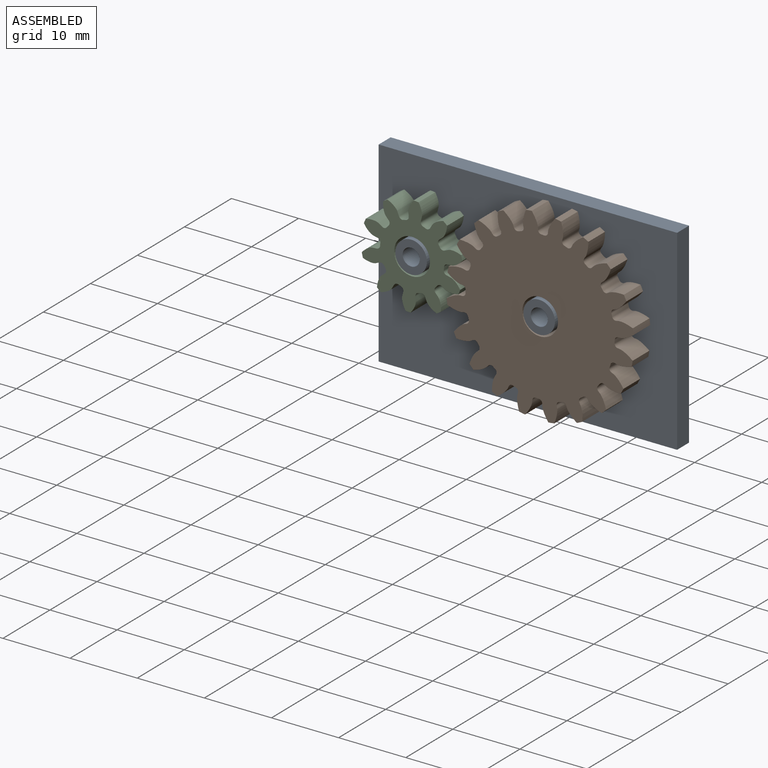
[diagram: assembled view]
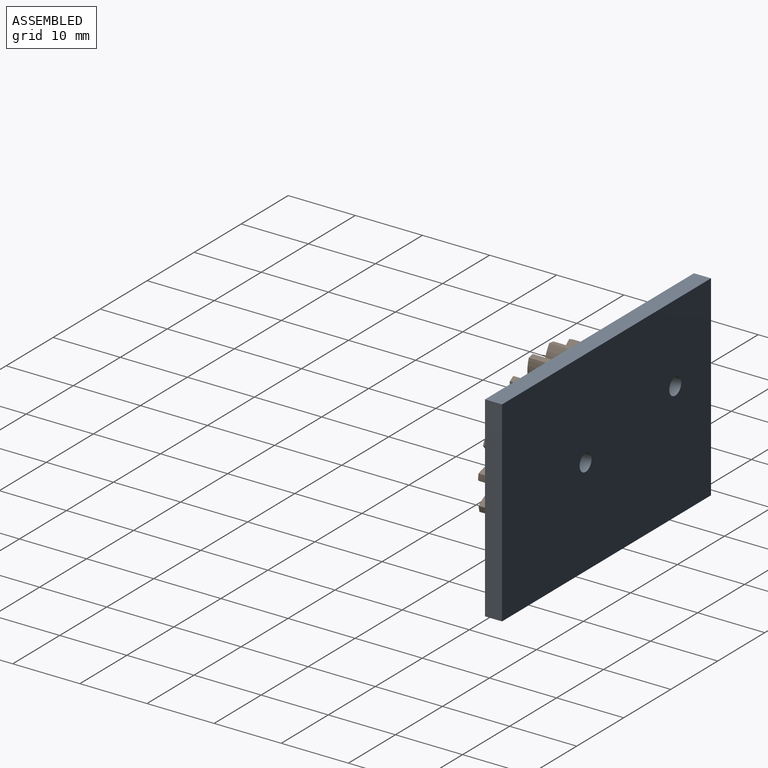
[diagram: assembled view, second angle]
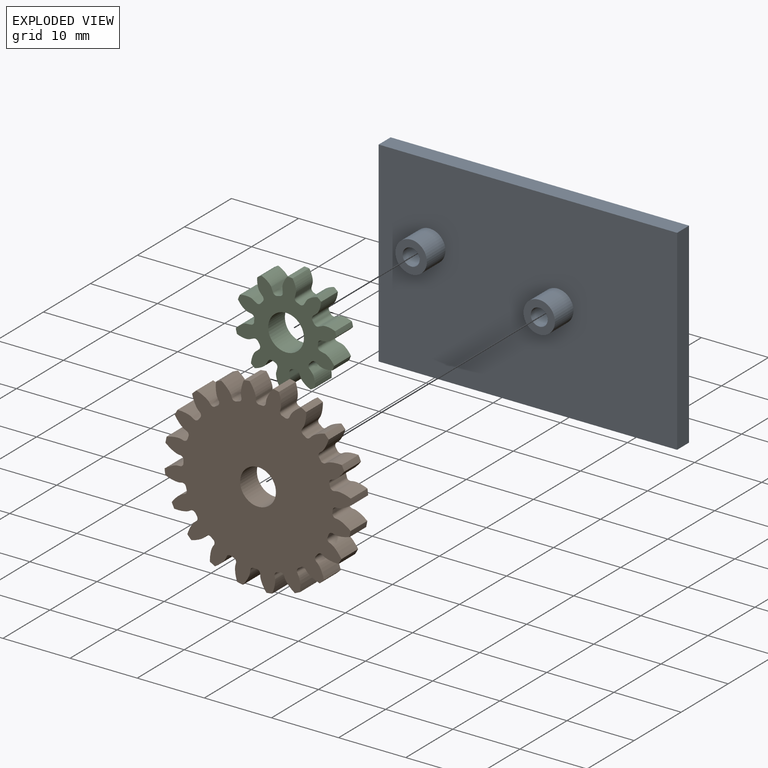
[diagram: exploded view]
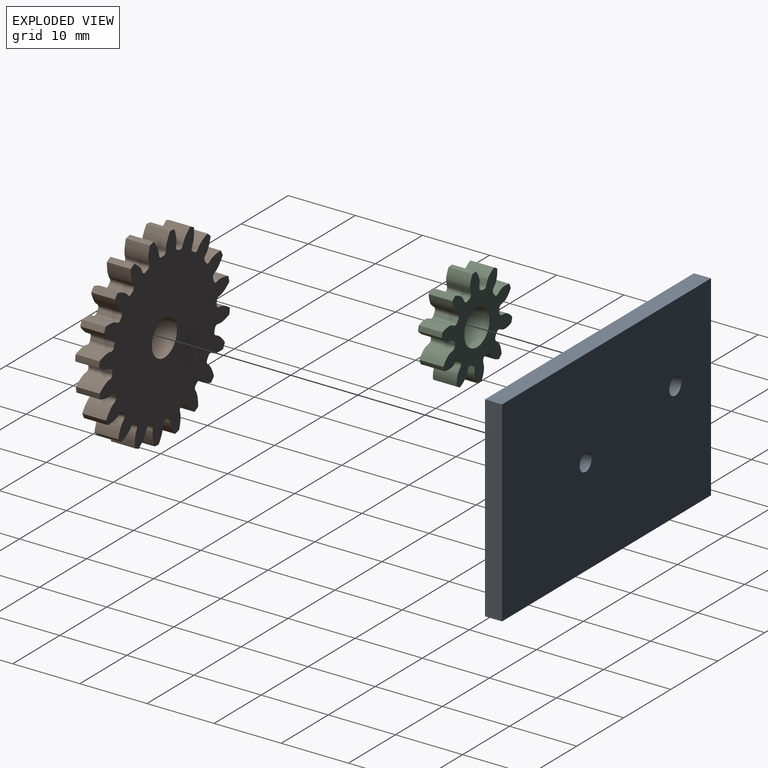
[diagram: exploded view, second angle]
ASSEMBLY  parts=3 mates=2
PART A: 12 faces, bbox 44.5x6.5x29.2 mm
  f0: plane 44.45x29.21mm, normal (0,1,0), area 1288.3mm2, adj f1,f2,f3,f4,f10,f11
  f1: plane 29.21x2.54mm, normal (-1,0,0), area 74.2mm2, adj f0,f2,f4,f5
  f2: plane 44.45x2.54mm, normal (0,0,-1), area 112.9mm2, adj f0,f1,f3,f5
  f3: plane 29.21x2.54mm, normal (1,0,0), area 74.2mm2, adj f0,f2,f4,f5
  f4: plane 44.45x2.54mm, normal (0,0,1), area 112.9mm2, adj f0,f1,f3,f5
  f5: plane 44.45x29.21mm, normal (0,-1,0), area 1263.7mm2, adj f1,f2,f3,f4,f6,f8
  f6: cylinder r=2.35mm len=4.7mm, axis (0,1,0), area 58.1mm2, adj f5,f7
  f7: plane 4.7x4.7mm, normal (0,-1,0), area 12.3mm2, adj f6,f10
  f8: cylinder r=2.35mm len=4.7mm, axis (0,1,0), area 58.1mm2, adj f5,f9
  f9: plane 4.7x4.7mm, normal (0,-1,0), area 12.3mm2, adj f8,f11
  f10: cylinder r=1.27mm len=6.48mm, axis (0,-1,0), area 51.7mm2, adj f0,f7
  f11: cylinder r=1.27mm len=6.48mm, axis (0,-1,0), area 51.7mm2, adj f0,f9
PART B: 123 faces, bbox 27.7x3.6x27.7 mm
  f0: cylinder r=13.97mm len=3.56mm, axis (0,1,0), area 3.1mm2, adj f19,f22,f73,f120
  f1: cylinder r=13.97mm len=3.56mm, axis (0,1,0), area 3.1mm2, adj f19,f22,f115,f118
  f2: cylinder r=13.97mm len=3.56mm, axis (0,1,0), area 3.1mm2, adj f19,f22,f110,f113
  f3: cylinder r=13.97mm len=3.56mm, axis (0,1,0), area 3.1mm2, adj f19,f22,f105,f108
  f4: cylinder r=13.97mm len=3.56mm, axis (0,1,0), area 3.1mm2, adj f19,f22,f100,f103
  f5: cylinder r=13.97mm len=3.56mm, axis (0,1,0), area 3.1mm2, adj f19,f22,f95,f98
  f6: cylinder r=13.97mm len=3.56mm, axis (0,1,0), area 3.1mm2, adj f19,f22,f90,f93
  f7: cylinder r=13.97mm len=3.56mm, axis (0,1,0), area 3.1mm2, adj f19,f22,f85,f88
  f8: cylinder r=13.97mm len=3.56mm, axis (0,1,0), area 3.1mm2, adj f19,f22,f68,f80
  f9: cylinder r=13.97mm len=3.56mm, axis (0,1,0), area 3.1mm2, adj f19,f22,f75,f78
  f10: cylinder r=13.97mm len=3.56mm, axis (0,1,0), area 3.1mm2, adj f19,f22,f63,f70
  f11: cylinder r=13.97mm len=3.56mm, axis (0,1,0), area 3.1mm2, adj f19,f22,f43,f65
  f12: cylinder r=13.97mm len=3.56mm, axis (0,1,0), area 3.1mm2, adj f19,f22,f23,f60
  f13: cylinder r=13.97mm len=3.56mm, axis (0,1,0), area 3.1mm2, adj f19,f22,f55,f58
  f14: cylinder r=13.97mm len=3.56mm, axis (0,1,0), area 3.1mm2, adj f19,f22,f50,f53
  f15: cylinder r=13.97mm len=3.56mm, axis (0,1,0), area 3.1mm2, adj f19,f22,f45,f48
  f16: cylinder r=13.97mm len=3.56mm, axis (0,1,0), area 3.1mm2, adj f19,f22,f33,f40
  f17: cylinder r=13.97mm len=3.56mm, axis (0,1,0), area 3.1mm2, adj f19,f22,f35,f83
  f18: cylinder r=13.97mm len=3.56mm, axis (0,1,0), area 3.1mm2, adj f19,f22,f30,f38
  f19: plane 27.74x27.74mm, normal (0,-1,0), area 474.1mm2, adj f0,f1,f2,f3,f4,f5,f6,f7
  f20: cylinder r=2.67mm len=5.33mm, axis (0,1,0), area 59.6mm2, adj f19,f22
  f21: cylinder r=13.97mm len=3.56mm, axis (0,1,0), area 3.1mm2, adj f19,f22,f25,f28
  f22: plane 27.74x27.74mm, normal (0,1,0), area 474.1mm2, adj f0,f1,f2,f3,f4,f5,f6,f7
  f23: extruded ~3.56x2.28mm, area 9mm2, adj f12,f19,f22,f26
  f24: cylinder r=11.11mm len=3.56mm, axis (0,1,0), area 1.6mm2, adj f19,f22,f26,f27
  f25: extruded ~3.56x2.28mm, area 9mm2, adj f19,f21,f22,f27
  f26: cylinder r=0.5mm len=3.56mm, axis (0,1,0), area 2.7mm2, adj f19,f22,f23,f24
  f27: cylinder r=0.5mm len=3.56mm, axis (0,1,0), area 2.7mm2, adj f19,f22,f24,f25
  f28: extruded ~3.56x2.48mm, area 9mm2, adj f19,f21,f22,f31
  f29: cylinder r=11.11mm len=3.56mm, axis (0,1,0), area 1.6mm2, adj f19,f22,f31,f32
  f30: extruded ~3.56x1.85mm, area 9mm2, adj f18,f19,f22,f32
  f31: cylinder r=0.5mm len=3.56mm, axis (0,1,0), area 2.7mm2, adj f19,f22,f28,f29
  f32: cylinder r=0.5mm len=3.56mm, axis (0,1,0), area 2.7mm2, adj f19,f22,f29,f30
  f33: extruded ~3.56x2.16mm, area 9mm2, adj f16,f19,f22,f36
  f34: cylinder r=11.11mm len=3.56mm, axis (0,1,0), area 1.6mm2, adj f19,f22,f36,f37
  f35: extruded ~3.56x2.44mm, area 9mm2, adj f17,f19,f22,f37
  f36: cylinder r=0.5mm len=3.56mm, axis (0,1,0), area 2.7mm2, adj f19,f22,f33,f34
  f37: cylinder r=0.5mm len=3.56mm, axis (0,1,0), area 2.7mm2, adj f19,f22,f34,f35
  f38: extruded ~3.56x2.44mm, area 9mm2, adj f18,f19,f22,f41
  f39: cylinder r=11.11mm len=3.56mm, axis (0,1,0), area 1.6mm2, adj f19,f22,f41,f42
  f40: extruded ~3.56x2.16mm, area 9mm2, adj f16,f19,f22,f42
  f41: cylinder r=0.5mm len=3.56mm, axis (0,1,0), area 2.7mm2, adj f19,f22,f38,f39
  f42: cylinder r=0.5mm len=3.56mm, axis (0,1,0), area 2.7mm2, adj f19,f22,f39,f40
  f43: extruded ~3.56x2.48mm, area 9mm2, adj f11,f19,f22,f46
  f44: cylinder r=11.11mm len=3.56mm, axis (0,1,0), area 1.6mm2, adj f19,f22,f46,f47
  f45: extruded ~3.56x1.85mm, area 9mm2, adj f15,f19,f22,f47
  f46: cylinder r=0.5mm len=3.56mm, axis (0,1,0), area 2.7mm2, adj f19,f22,f43,f44
  f47: cylinder r=0.5mm len=3.56mm, axis (0,1,0), area 2.7mm2, adj f19,f22,f44,f45
  f48: extruded ~3.56x2.44mm, area 9mm2, adj f15,f19,f22,f51
  f49: cylinder r=11.11mm len=3.56mm, axis (0,1,0), area 1.6mm2, adj f19,f22,f51,f52
  f50: extruded ~3.56x2.16mm, area 9mm2, adj f14,f19,f22,f52
  f51: cylinder r=0.5mm len=3.56mm, axis (0,1,0), area 2.7mm2, adj f19,f22,f48,f49
  f52: cylinder r=0.5mm len=3.56mm, axis (0,1,0), area 2.7mm2, adj f19,f22,f49,f50
  f53: extruded ~3.56x2.16mm, area 9mm2, adj f14,f19,f22,f56
  f54: cylinder r=11.11mm len=3.56mm, axis (0,1,0), area 1.6mm2, adj f19,f22,f56,f57
  f55: extruded ~3.56x2.44mm, area 9mm2, adj f13,f19,f22,f57
  f56: cylinder r=0.5mm len=3.56mm, axis (0,1,0), area 2.7mm2, adj f19,f22,f53,f54
  f57: cylinder r=0.5mm len=3.56mm, axis (0,1,0), area 2.7mm2, adj f19,f22,f54,f55
  f58: extruded ~3.56x1.85mm, area 9mm2, adj f13,f19,f22,f61
  f59: cylinder r=11.11mm len=3.56mm, axis (0,1,0), area 1.6mm2, adj f19,f22,f61,f62
  f60: extruded ~3.56x2.48mm, area 9mm2, adj f12,f19,f22,f62
  f61: cylinder r=0.5mm len=3.56mm, axis (0,1,0), area 2.7mm2, adj f19,f22,f58,f59
  f62: cylinder r=0.5mm len=3.56mm, axis (0,1,0), area 2.7mm2, adj f19,f22,f59,f60
  f63: extruded ~3.56x2.28mm, area 9mm2, adj f10,f19,f22,f66
  f64: cylinder r=11.11mm len=3.56mm, axis (0,1,0), area 1.6mm2, adj f19,f22,f66,f67
  f65: extruded ~3.56x2.28mm, area 9mm2, adj f11,f19,f22,f67
  f66: cylinder r=0.5mm len=3.56mm, axis (0,1,0), area 2.7mm2, adj f19,f22,f63,f64
  f67: cylinder r=0.5mm len=3.56mm, axis (0,1,0), area 2.7mm2, adj f19,f22,f64,f65
  f68: extruded ~3.56x1.85mm, area 9mm2, adj f8,f19,f22,f71
  f69: cylinder r=11.11mm len=3.56mm, axis (0,1,0), area 1.6mm2, adj f19,f22,f71,f72
  f70: extruded ~3.56x2.48mm, area 9mm2, adj f10,f19,f22,f72
  f71: cylinder r=0.5mm len=3.56mm, axis (0,1,0), area 2.7mm2, adj f19,f22,f68,f69
  f72: cylinder r=0.5mm len=3.56mm, axis (0,1,0), area 2.7mm2, adj f19,f22,f69,f70
  f73: extruded ~3.56x2.44mm, area 9mm2, adj f0,f19,f22,f76
  f74: cylinder r=11.11mm len=3.56mm, axis (0,1,0), area 1.6mm2, adj f19,f22,f76,f77
  f75: extruded ~3.56x2.16mm, area 9mm2, adj f9,f19,f22,f77
  f76: cylinder r=0.5mm len=3.56mm, axis (0,1,0), area 2.7mm2, adj f19,f22,f73,f74
  f77: cylinder r=0.5mm len=3.56mm, axis (0,1,0), area 2.7mm2, adj f19,f22,f74,f75
  f78: extruded ~3.56x2.16mm, area 9mm2, adj f9,f19,f22,f81
  f79: cylinder r=11.11mm len=3.56mm, axis (0,1,0), area 1.6mm2, adj f19,f22,f81,f82
  f80: extruded ~3.56x2.44mm, area 9mm2, adj f8,f19,f22,f82
  f81: cylinder r=0.5mm len=3.56mm, axis (0,1,0), area 2.7mm2, adj f19,f22,f78,f79
  f82: cylinder r=0.5mm len=3.56mm, axis (0,1,0), area 2.7mm2, adj f19,f22,f79,f80
  f83: extruded ~3.56x1.85mm, area 9mm2, adj f17,f19,f22,f86
  f84: cylinder r=11.11mm len=3.56mm, axis (0,1,0), area 1.6mm2, adj f19,f22,f86,f87
  f85: extruded ~3.56x2.48mm, area 9mm2, adj f7,f19,f22,f87
  f86: cylinder r=0.5mm len=3.56mm, axis (0,1,0), area 2.7mm2, adj f19,f22,f83,f84
  f87: cylinder r=0.5mm len=3.56mm, axis (0,1,0), area 2.7mm2, adj f19,f22,f84,f85
  f88: extruded ~3.56x2.28mm, area 9mm2, adj f7,f19,f22,f91
  f89: cylinder r=11.11mm len=3.56mm, axis (0,1,0), area 1.6mm2, adj f19,f22,f91,f92
  f90: extruded ~3.56x2.28mm, area 9mm2, adj f6,f19,f22,f92
  f91: cylinder r=0.5mm len=3.56mm, axis (0,1,0), area 2.7mm2, adj f19,f22,f88,f89
  f92: cylinder r=0.5mm len=3.56mm, axis (0,1,0), area 2.7mm2, adj f19,f22,f89,f90
  f93: extruded ~3.56x2.48mm, area 9mm2, adj f6,f19,f22,f96
  f94: cylinder r=11.11mm len=3.56mm, axis (0,1,0), area 1.6mm2, adj f19,f22,f96,f97
  f95: extruded ~3.56x1.85mm, area 9mm2, adj f5,f19,f22,f97
  f96: cylinder r=0.5mm len=3.56mm, axis (0,1,0), area 2.7mm2, adj f19,f22,f93,f94
  f97: cylinder r=0.5mm len=3.56mm, axis (0,1,0), area 2.7mm2, adj f19,f22,f94,f95
  f98: extruded ~3.56x2.44mm, area 9mm2, adj f5,f19,f22,f101
  f99: cylinder r=11.11mm len=3.56mm, axis (0,1,0), area 1.6mm2, adj f19,f22,f101,f102
  f100: extruded ~3.56x2.16mm, area 9mm2, adj f4,f19,f22,f102
  f101: cylinder r=0.5mm len=3.56mm, axis (0,1,0), area 2.7mm2, adj f19,f22,f98,f99
  f102: cylinder r=0.5mm len=3.56mm, axis (0,1,0), area 2.7mm2, adj f19,f22,f99,f100
  f103: extruded ~3.56x2.16mm, area 9mm2, adj f4,f19,f22,f106
  f104: cylinder r=11.11mm len=3.56mm, axis (0,1,0), area 1.6mm2, adj f19,f22,f106,f107
  f105: extruded ~3.56x2.44mm, area 9mm2, adj f3,f19,f22,f107
  f106: cylinder r=0.5mm len=3.56mm, axis (0,1,0), area 2.7mm2, adj f19,f22,f103,f104
  f107: cylinder r=0.5mm len=3.56mm, axis (0,1,0), area 2.7mm2, adj f19,f22,f104,f105
  f108: extruded ~3.56x1.85mm, area 9mm2, adj f3,f19,f22,f111
  f109: cylinder r=11.11mm len=3.56mm, axis (0,1,0), area 1.6mm2, adj f19,f22,f111,f112
  f110: extruded ~3.56x2.48mm, area 9mm2, adj f2,f19,f22,f112
  f111: cylinder r=0.5mm len=3.56mm, axis (0,1,0), area 2.7mm2, adj f19,f22,f108,f109
  f112: cylinder r=0.5mm len=3.56mm, axis (0,1,0), area 2.7mm2, adj f19,f22,f109,f110
  f113: extruded ~3.56x2.28mm, area 9mm2, adj f2,f19,f22,f116
  f114: cylinder r=11.11mm len=3.56mm, axis (0,1,0), area 1.6mm2, adj f19,f22,f116,f117
  f115: extruded ~3.56x2.28mm, area 9mm2, adj f1,f19,f22,f117
  f116: cylinder r=0.5mm len=3.56mm, axis (0,1,0), area 2.7mm2, adj f19,f22,f113,f114
  f117: cylinder r=0.5mm len=3.56mm, axis (0,1,0), area 2.7mm2, adj f19,f22,f114,f115
  f118: extruded ~3.56x2.48mm, area 9mm2, adj f1,f19,f22,f121
  f119: cylinder r=11.11mm len=3.56mm, axis (0,1,0), area 1.6mm2, adj f19,f22,f121,f122
  f120: extruded ~3.56x1.85mm, area 9mm2, adj f0,f19,f22,f122
  f121: cylinder r=0.5mm len=3.56mm, axis (0,1,0), area 2.7mm2, adj f19,f22,f118,f119
  f122: cylinder r=0.5mm len=3.56mm, axis (0,1,0), area 2.7mm2, adj f19,f22,f119,f120
PART C: 63 faces, bbox 14.7x3.6x15.3 mm
  f0: cylinder r=7.62mm len=3.56mm, axis (0,1,0), area 2.7mm2, adj f9,f12,f53,f60
  f1: cylinder r=7.62mm len=3.56mm, axis (0,1,0), area 2.7mm2, adj f9,f12,f13,f55
  f2: cylinder r=7.62mm len=3.56mm, axis (0,1,0), area 2.7mm2, adj f9,f12,f43,f50
  f3: cylinder r=7.62mm len=3.56mm, axis (0,1,0), area 2.7mm2, adj f9,f12,f45,f58
  f4: cylinder r=7.62mm len=3.56mm, axis (0,1,0), area 2.7mm2, adj f9,f12,f33,f40
  f5: cylinder r=7.62mm len=3.56mm, axis (0,1,0), area 2.7mm2, adj f9,f12,f28,f35
  f6: cylinder r=7.62mm len=3.56mm, axis (0,1,0), area 2.7mm2, adj f9,f12,f23,f30
  f7: cylinder r=7.62mm len=3.56mm, axis (0,1,0), area 2.7mm2, adj f9,f12,f25,f48
  f8: cylinder r=7.62mm len=3.56mm, axis (0,1,0), area 2.7mm2, adj f9,f12,f20,f38
  f9: plane 15.27x14.74mm, normal (0,-1,0), area 98.8mm2, adj f0,f1,f2,f3,f4,f5,f6,f7
  f10: cylinder r=2.67mm len=5.33mm, axis (0,1,0), area 59.6mm2, adj f9,f12
  f11: cylinder r=7.62mm len=3.56mm, axis (0,1,0), area 2.7mm2, adj f9,f12,f15,f18
  f12: plane 15.27x14.74mm, normal (0,1,0), area 98.8mm2, adj f0,f1,f2,f3,f4,f5,f6,f7
  f13: extruded ~3.56x2.15mm, area 9.2mm2, adj f1,f9,f12,f16
  f14: cylinder r=4.76mm len=3.56mm, axis (0,1,0), area 1.5mm2, adj f9,f12,f16,f17
  f15: extruded ~3.56x2.15mm, area 9.2mm2, adj f9,f11,f12,f17
  f16: cylinder r=0.52mm len=3.56mm, axis (0,1,0), area 2.7mm2, adj f9,f12,f13,f14
  f17: cylinder r=0.52mm len=3.56mm, axis (0,1,0), area 2.7mm2, adj f9,f12,f14,f15
  f18: extruded ~3.56x2.47mm, area 9.2mm2, adj f9,f11,f12,f21
  f19: cylinder r=4.76mm len=3.56mm, axis (0,1,0), area 1.5mm2, adj f9,f12,f21,f22
  f20: extruded ~3.56x2.28mm, area 9.2mm2, adj f8,f9,f12,f22
  f21: cylinder r=0.52mm len=3.56mm, axis (0,1,0), area 2.7mm2, adj f9,f12,f18,f19
  f22: cylinder r=0.52mm len=3.56mm, axis (0,1,0), area 2.7mm2, adj f9,f12,f19,f20
  f23: extruded ~3.56x2.15mm, area 9.2mm2, adj f6,f9,f12,f26
  f24: cylinder r=4.76mm len=3.56mm, axis (0,1,0), area 1.5mm2, adj f9,f12,f26,f27
  f25: extruded ~3.56x2.15mm, area 9.2mm2, adj f7,f9,f12,f27
  f26: cylinder r=0.52mm len=3.56mm, axis (0,1,0), area 2.7mm2, adj f9,f12,f23,f24
  f27: cylinder r=0.52mm len=3.56mm, axis (0,1,0), area 2.7mm2, adj f9,f12,f24,f25
  f28: extruded ~3.56x2.28mm, area 9.2mm2, adj f5,f9,f12,f31
  f29: cylinder r=4.76mm len=3.56mm, axis (0,1,0), area 1.5mm2, adj f9,f12,f31,f32
  f30: extruded ~3.56x2.47mm, area 9.2mm2, adj f6,f9,f12,f32
  f31: cylinder r=0.52mm len=3.56mm, axis (0,1,0), area 2.7mm2, adj f9,f12,f28,f29
  f32: cylinder r=0.52mm len=3.56mm, axis (0,1,0), area 2.7mm2, adj f9,f12,f29,f30
  f33: extruded ~3.56x2.43mm, area 9.2mm2, adj f4,f9,f12,f36
  f34: cylinder r=4.76mm len=3.56mm, axis (0,1,0), area 1.5mm2, adj f9,f12,f36,f37
  f35: extruded ~3.56x1.86mm, area 9.2mm2, adj f5,f9,f12,f37
  f36: cylinder r=0.52mm len=3.56mm, axis (0,1,0), area 2.7mm2, adj f9,f12,f33,f34
  f37: cylinder r=0.52mm len=3.56mm, axis (0,1,0), area 2.7mm2, adj f9,f12,f34,f35
  f38: extruded ~3.56x1.86mm, area 9.2mm2, adj f8,f9,f12,f41
  f39: cylinder r=4.76mm len=3.56mm, axis (0,1,0), area 1.5mm2, adj f9,f12,f41,f42
  f40: extruded ~3.56x2.43mm, area 9.2mm2, adj f4,f9,f12,f42
  f41: cylinder r=0.52mm len=3.56mm, axis (0,1,0), area 2.7mm2, adj f9,f12,f38,f39
  f42: cylinder r=0.52mm len=3.56mm, axis (0,1,0), area 2.7mm2, adj f9,f12,f39,f40
  f43: extruded ~3.56x1.86mm, area 9.2mm2, adj f2,f9,f12,f46
  f44: cylinder r=4.76mm len=3.56mm, axis (0,1,0), area 1.5mm2, adj f9,f12,f46,f47
  f45: extruded ~3.56x2.43mm, area 9.2mm2, adj f3,f9,f12,f47
  f46: cylinder r=0.52mm len=3.56mm, axis (0,1,0), area 2.7mm2, adj f9,f12,f43,f44
  f47: cylinder r=0.52mm len=3.56mm, axis (0,1,0), area 2.7mm2, adj f9,f12,f44,f45
  f48: extruded ~3.56x2.47mm, area 9.2mm2, adj f7,f9,f12,f51
  f49: cylinder r=4.76mm len=3.56mm, axis (0,1,0), area 1.5mm2, adj f9,f12,f51,f52
  f50: extruded ~3.56x2.28mm, area 9.2mm2, adj f2,f9,f12,f52
  f51: cylinder r=0.52mm len=3.56mm, axis (0,1,0), area 2.7mm2, adj f9,f12,f48,f49
  f52: cylinder r=0.52mm len=3.56mm, axis (0,1,0), area 2.7mm2, adj f9,f12,f49,f50
  f53: extruded ~3.56x2.28mm, area 9.2mm2, adj f0,f9,f12,f56
  f54: cylinder r=4.76mm len=3.56mm, axis (0,1,0), area 1.5mm2, adj f9,f12,f56,f57
  f55: extruded ~3.56x2.47mm, area 9.2mm2, adj f1,f9,f12,f57
  f56: cylinder r=0.52mm len=3.56mm, axis (0,1,0), area 2.7mm2, adj f9,f12,f53,f54
  f57: cylinder r=0.52mm len=3.56mm, axis (0,1,0), area 2.7mm2, adj f9,f12,f54,f55
  f58: extruded ~3.56x2.43mm, area 9.2mm2, adj f3,f9,f12,f61
  f59: cylinder r=4.76mm len=3.56mm, axis (0,1,0), area 1.5mm2, adj f9,f12,f61,f62
  f60: extruded ~3.56x1.86mm, area 9.2mm2, adj f0,f9,f12,f62
  f61: cylinder r=0.52mm len=3.56mm, axis (0,1,0), area 2.7mm2, adj f9,f12,f58,f59
  f62: cylinder r=0.52mm len=3.56mm, axis (0,1,0), area 2.7mm2, adj f9,f12,f59,f60
PLACE A t=(51.12,2.89,22.74)mm fixed
PLACE B rot(axis=(0,-1,0),15.9deg) t=(46.04,2.69,30.9)mm
PLACE C rot(axis=(0,1,0),4.5deg) t=(51.84,2.69,18.72)mm
MATE revolute A.f8 <-> C.f0  axis (0,-1,0) through (0.3,0.35,11.63)mm
MATE revolute A.f6 <-> B.f0  axis (0,-1,0) through (19.37,0.35,8.65)mm
